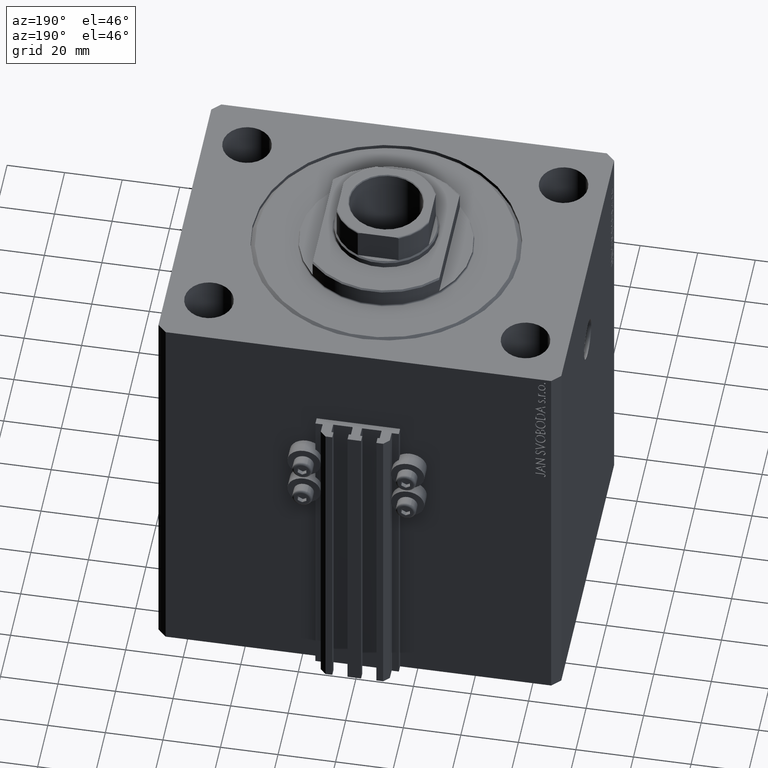
[diagram: clean part render]
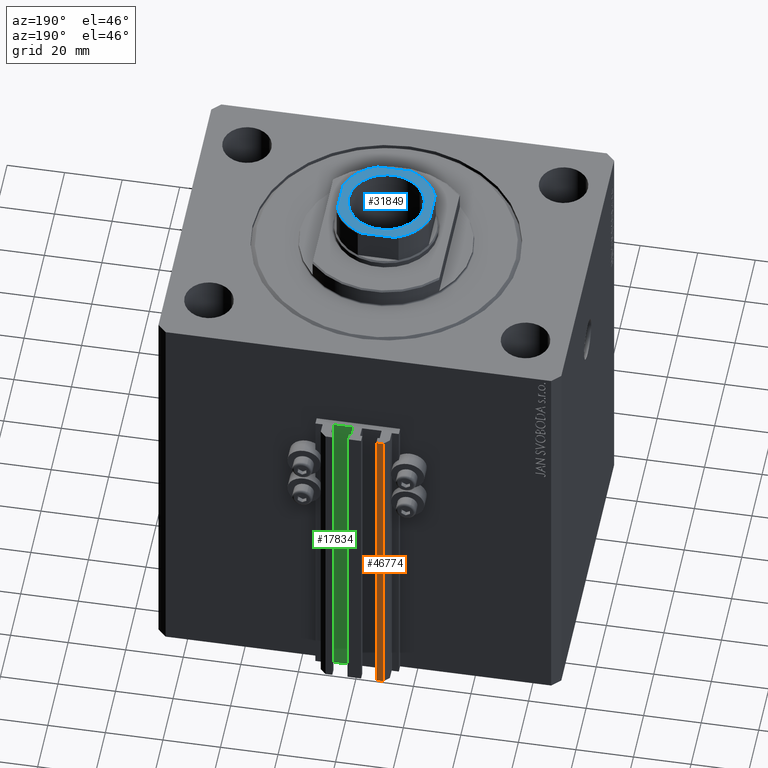
[diagram: same view with three faces highlighted in distinct colors, each labeled with its STEP entity id]
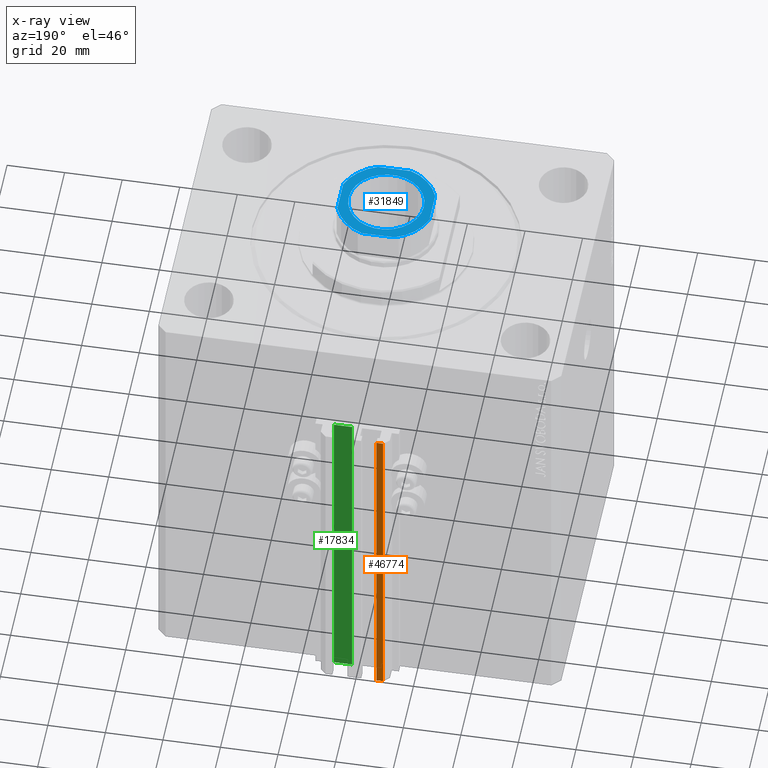
[diagram: x-ray of the same camera — body ghosted, the three highlighted faces saturated]
A machine part, auxiliary view with three faces highlighted in distinct colors.
The next image is the same camera in x-ray (body ghosted, the three faces saturated) — at least one of them is partly hidden behind the body in this view.
Their STEP definitions:

[orange] entity #46774 — the highlighted planar face has unit normal (0, 1, 0).
#1462 = AXIS2_PLACEMENT_3D ( 'NONE', #41433, #30651, #18926 ) ;
#2380 = ORIENTED_EDGE ( 'NONE', *, *, #29021, .F. ) ;
#4553 = VECTOR ( 'NONE', #31254, 1000.000000000000000 ) ;
#4908 = DIRECTION ( 'NONE',  ( -1.000000000000000000, 0.000000000000000000, 0.000000000000000000 ) ) ;
#5214 = CARTESIAN_POINT ( 'NONE',  ( -10.00000000000000000, 63.00000000000000000, -150.0000000000000000 ) ) ;
#6713 = CARTESIAN_POINT ( 'NONE',  ( -10.00000000000000000, 63.00000000000000000, -150.0000000000000000 ) ) ;
#7490 = EDGE_CURVE ( 'NONE', #29170, #40756, #45861, .T. ) ;
#7677 = PLANE ( 'NONE',  #1462 ) ;
#8087 = EDGE_LOOP ( 'NONE', ( #2380, #33538, #15801, #20609 ) ) ;
#8763 = LINE ( 'NONE', #27214, #22658 ) ;
#13406 = VECTOR ( 'NONE', #4908, 1000.000000000000000 ) ;
#15245 = VERTEX_POINT ( 'NONE', #16128 ) ;
#15801 = ORIENTED_EDGE ( 'NONE', *, *, #27554, .T. ) ;
#16128 = CARTESIAN_POINT ( 'NONE',  ( -10.00000000000000000, 63.00000000000000000, -33.00000000000000000 ) ) ;
#16648 = CARTESIAN_POINT ( 'NONE',  ( -7.650000000000002132, 63.00000000000000000, -150.0000000000000000 ) ) ;
#17684 = EDGE_CURVE ( 'NONE', #38167, #15245, #46131, .T. ) ;
#18926 = DIRECTION ( 'NONE',  ( 0.000000000000000000, 0.000000000000000000, 1.000000000000000000 ) ) ;
#20254 = DIRECTION ( 'NONE',  ( -1.000000000000000000, 0.000000000000000000, 0.000000000000000000 ) ) ;
#20609 = ORIENTED_EDGE ( 'NONE', *, *, #17684, .T. ) ;
#22520 = FACE_OUTER_BOUND ( 'NONE', #8087, .T. ) ;
#22658 = VECTOR ( 'NONE', #20254, 1000.000000000000000 ) ;
#24340 = DIRECTION ( 'NONE',  ( 0.000000000000000000, 0.000000000000000000, 1.000000000000000000 ) ) ;
#26697 = LINE ( 'NONE', #37697, #13406 ) ;
#27214 = CARTESIAN_POINT ( 'NONE',  ( -7.650000000000002132, 63.00000000000000000, -33.00000000000000000 ) ) ;
#27554 = EDGE_CURVE ( 'NONE', #29170, #38167, #26697, .T. ) ;
#29021 = EDGE_CURVE ( 'NONE', #40756, #15245, #8763, .T. ) ;
#29170 = VERTEX_POINT ( 'NONE', #29782 ) ;
#29782 = CARTESIAN_POINT ( 'NONE',  ( -7.650000000000002132, 63.00000000000000000, -150.0000000000000000 ) ) ;
#30651 = DIRECTION ( 'NONE',  ( 0.000000000000000000, 1.000000000000000000, -0.000000000000000000 ) ) ;
#31254 = DIRECTION ( 'NONE',  ( 0.000000000000000000, 0.000000000000000000, 1.000000000000000000 ) ) ;
#33538 = ORIENTED_EDGE ( 'NONE', *, *, #7490, .F. ) ;
#33660 = CARTESIAN_POINT ( 'NONE',  ( -7.650000000000002132, 63.00000000000000000, -33.00000000000000000 ) ) ;
#37697 = CARTESIAN_POINT ( 'NONE',  ( -7.650000000000002132, 63.00000000000000000, -150.0000000000000000 ) ) ;
#38167 = VERTEX_POINT ( 'NONE', #6713 ) ;
#40756 = VERTEX_POINT ( 'NONE', #33660 ) ;
#41433 = CARTESIAN_POINT ( 'NONE',  ( -7.650000000000002132, 63.00000000000000000, -150.0000000000000000 ) ) ;
#45280 = VECTOR ( 'NONE', #24340, 1000.000000000000000 ) ;
#45861 = LINE ( 'NONE', #16648, #4553 ) ;
#46131 = LINE ( 'NONE', #5214, #45280 ) ;
#46774 = ADVANCED_FACE ( 'NONE', ( #22520 ), #7677, .T. ) ;

[blue] entity #31849 — the highlighted planar face has unit normal (0, 0, 1).
#118 = DIRECTION ( 'NONE',  ( -0.000000000000000000, 0.000000000000000000, 1.000000000000000000 ) ) ;
#405 = CARTESIAN_POINT ( 'NONE',  ( -16.00000000000000000, 15.99999999999999645, 145.0000000000000284 ) ) ;
#2762 = DIRECTION ( 'NONE',  ( 1.000000000000000000, 0.000000000000000000, 0.000000000000000000 ) ) ;
#4376 = CARTESIAN_POINT ( 'NONE',  ( -16.00000000000000000, -5.744562646538033945, 145.0000000000000284 ) ) ;
#4602 = VERTEX_POINT ( 'NONE', #4376 ) ;
#4619 = DIRECTION ( 'NONE',  ( -0.000000000000000000, 0.000000000000000000, 1.000000000000000000 ) ) ;
#4863 = ORIENTED_EDGE ( 'NONE', *, *, #19748, .T. ) ;
#4965 = ORIENTED_EDGE ( 'NONE', *, *, #16201, .T. ) ;
#5710 = CARTESIAN_POINT ( 'NONE',  ( -5.744562646538029504, -16.00000000000000355, 145.0000000000000284 ) ) ;
#6556 = DIRECTION ( 'NONE',  ( 1.000000000000000000, 0.000000000000000000, 0.000000000000000000 ) ) ;
#6683 = ORIENTED_EDGE ( 'NONE', *, *, #25469, .T. ) ;
#7034 = DIRECTION ( 'NONE',  ( 1.000000000000000000, 0.000000000000000000, 0.000000000000000000 ) ) ;
#7097 = VECTOR ( 'NONE', #44443, 1000.000000000000000 ) ;
#7170 = ORIENTED_EDGE ( 'NONE', *, *, #22624, .T. ) ;
#7906 = EDGE_CURVE ( 'NONE', #46087, #4602, #39945, .T. ) ;
#8880 = LINE ( 'NONE', #41687, #9290 ) ;
#9290 = VECTOR ( 'NONE', #34033, 1000.000000000000000 ) ;
#11210 = AXIS2_PLACEMENT_3D ( 'NONE', #32848, #4619, #33572 ) ;
#11322 = DIRECTION ( 'NONE',  ( -0.000000000000000000, 0.000000000000000000, 1.000000000000000000 ) ) ;
#12276 = EDGE_LOOP ( 'NONE', ( #7170, #33754 ) ) ;
#13628 = CARTESIAN_POINT ( 'NONE',  ( 0.000000000000000000, 0.000000000000000000, 145.0000000000000284 ) ) ;
#15119 = LINE ( 'NONE', #44080, #42400 ) ;
#15223 = CARTESIAN_POINT ( 'NONE',  ( 16.00000000000000355, -5.744562646538033057, 145.0000000000000284 ) ) ;
#15249 = CARTESIAN_POINT ( 'NONE',  ( 0.000000000000000000, 0.000000000000000000, 145.0000000000000284 ) ) ;
#15678 = VERTEX_POINT ( 'NONE', #41798 ) ;
#15765 = EDGE_CURVE ( 'NONE', #22145, #46087, #19204, .T. ) ;
#16197 = EDGE_CURVE ( 'NONE', #4602, #42830, #19238, .T. ) ;
#16201 = EDGE_CURVE ( 'NONE', #42830, #35160, #8880, .T. ) ;
#16364 = CIRCLE ( 'NONE', #23225, 13.05000000000003268 ) ;
#16612 = CIRCLE ( 'NONE', #31888, 13.05000000000003268 ) ;
#16814 = VECTOR ( 'NONE', #28253, 1000.000000000000000 ) ;
#19204 = CIRCLE ( 'NONE', #45957, 17.00000000000000000 ) ;
#19238 = CIRCLE ( 'NONE', #42171, 17.00000000000000000 ) ;
#19490 = CARTESIAN_POINT ( 'NONE',  ( -13.05000000000003268, 1.598164072887299324E-15, 145.0000000000000284 ) ) ;
#19748 = EDGE_CURVE ( 'NONE', #15678, #22145, #40847, .T. ) ;
#22145 = VERTEX_POINT ( 'NONE', #26279 ) ;
#22375 = ORIENTED_EDGE ( 'NONE', *, *, #28636, .T. ) ;
#22381 = CARTESIAN_POINT ( 'NONE',  ( 13.05000000000003268, 0.000000000000000000, 145.0000000000000284 ) ) ;
#22624 = EDGE_CURVE ( 'NONE', #34997, #43314, #16364, .T. ) ;
#23029 = DIRECTION ( 'NONE',  ( 1.000000000000000000, 0.000000000000000000, 0.000000000000000000 ) ) ;
#23225 = AXIS2_PLACEMENT_3D ( 'NONE', #24509, #27879, #6556 ) ;
#23734 = DIRECTION ( 'NONE',  ( -0.000000000000000000, 0.000000000000000000, 1.000000000000000000 ) ) ;
#23965 = CARTESIAN_POINT ( 'NONE',  ( 0.000000000000000000, 0.000000000000000000, 145.0000000000000284 ) ) ;
#24509 = CARTESIAN_POINT ( 'NONE',  ( 0.000000000000000000, 0.000000000000000000, 145.0000000000000284 ) ) ;
#25000 = CARTESIAN_POINT ( 'NONE',  ( 0.000000000000000000, 0.000000000000000000, 145.0000000000000284 ) ) ;
#25469 = EDGE_CURVE ( 'NONE', #35160, #31548, #34802, .T. ) ;
#25683 = FACE_OUTER_BOUND ( 'NONE', #45837, .T. ) ;
#25931 = PLANE ( 'NONE',  #35627 ) ;
#26279 = CARTESIAN_POINT ( 'NONE',  ( -5.744562646538033945, 16.00000000000000000, 145.0000000000000284 ) ) ;
#27773 = DIRECTION ( 'NONE',  ( 0.000000000000000000, -0.000000000000000000, -1.000000000000000000 ) ) ;
#27879 = DIRECTION ( 'NONE',  ( 0.000000000000000000, -0.000000000000000000, -1.000000000000000000 ) ) ;
#28239 = DIRECTION ( 'NONE',  ( 1.000000000000000000, 0.000000000000000000, 0.000000000000000000 ) ) ;
#28253 = DIRECTION ( 'NONE',  ( 1.084202172485504434E-16, -1.000000000000000000, 0.000000000000000000 ) ) ;
#28636 = EDGE_CURVE ( 'NONE', #31548, #41488, #15119, .T. ) ;
#28708 = CARTESIAN_POINT ( 'NONE',  ( -16.00000000000000000, 15.99999999999999645, 145.0000000000000284 ) ) ;
#29146 = ORIENTED_EDGE ( 'NONE', *, *, #16197, .T. ) ;
#31548 = VERTEX_POINT ( 'NONE', #15223 ) ;
#31849 = ADVANCED_FACE ( 'NONE', ( #36443, #25683 ), #25931, .T. ) ;
#31855 = CIRCLE ( 'NONE', #11210, 17.00000000000000000 ) ;
#31888 = AXIS2_PLACEMENT_3D ( 'NONE', #13628, #27773, #28239 ) ;
#32166 = CARTESIAN_POINT ( 'NONE',  ( 16.00000000000000000, 5.744562646538033945, 145.0000000000000284 ) ) ;
#32848 = CARTESIAN_POINT ( 'NONE',  ( 0.000000000000000000, 0.000000000000000000, 145.0000000000000284 ) ) ;
#33431 = DIRECTION ( 'NONE',  ( -0.000000000000000000, 0.000000000000000000, 1.000000000000000000 ) ) ;
#33572 = DIRECTION ( 'NONE',  ( 1.000000000000000000, 0.000000000000000000, 0.000000000000000000 ) ) ;
#33754 = ORIENTED_EDGE ( 'NONE', *, *, #41965, .T. ) ;
#34033 = DIRECTION ( 'NONE',  ( 1.000000000000000000, 1.084202172485504434E-16, 0.000000000000000000 ) ) ;
#34206 = ORIENTED_EDGE ( 'NONE', *, *, #7906, .T. ) ;
#34802 = CIRCLE ( 'NONE', #41680, 17.00000000000000000 ) ;
#34997 = VERTEX_POINT ( 'NONE', #22381 ) ;
#35160 = VERTEX_POINT ( 'NONE', #43166 ) ;
#35318 = EDGE_CURVE ( 'NONE', #41488, #15678, #31855, .T. ) ;
#35627 = AXIS2_PLACEMENT_3D ( 'NONE', #44123, #11322, #7034 ) ;
#36443 = FACE_BOUND ( 'NONE', #12276, .T. ) ;
#36649 = DIRECTION ( 'NONE',  ( -1.084202172485504434E-16, 1.000000000000000000, -0.000000000000000000 ) ) ;
#38366 = ORIENTED_EDGE ( 'NONE', *, *, #35318, .T. ) ;
#39865 = CARTESIAN_POINT ( 'NONE',  ( -16.00000000000000000, 5.744562646538029504, 145.0000000000000284 ) ) ;
#39945 = LINE ( 'NONE', #28708, #16814 ) ;
#40847 = LINE ( 'NONE', #405, #7097 ) ;
#40855 = DIRECTION ( 'NONE',  ( 1.000000000000000000, 0.000000000000000000, 0.000000000000000000 ) ) ;
#41488 = VERTEX_POINT ( 'NONE', #32166 ) ;
#41680 = AXIS2_PLACEMENT_3D ( 'NONE', #15249, #33431, #40855 ) ;
#41687 = CARTESIAN_POINT ( 'NONE',  ( -15.99999999999999645, -16.00000000000000355, 145.0000000000000284 ) ) ;
#41798 = CARTESIAN_POINT ( 'NONE',  ( 5.744562646538033057, 16.00000000000000000, 145.0000000000000284 ) ) ;
#41965 = EDGE_CURVE ( 'NONE', #43314, #34997, #16612, .T. ) ;
#42171 = AXIS2_PLACEMENT_3D ( 'NONE', #23965, #23734, #23029 ) ;
#42400 = VECTOR ( 'NONE', #36649, 1000.000000000000000 ) ;
#42830 = VERTEX_POINT ( 'NONE', #5710 ) ;
#43166 = CARTESIAN_POINT ( 'NONE',  ( 5.744562646538024175, -16.00000000000000355, 145.0000000000000284 ) ) ;
#43314 = VERTEX_POINT ( 'NONE', #19490 ) ;
#44080 = CARTESIAN_POINT ( 'NONE',  ( 16.00000000000000000, 16.00000000000000000, 145.0000000000000284 ) ) ;
#44123 = CARTESIAN_POINT ( 'NONE',  ( 0.000000000000000000, 0.000000000000000000, 145.0000000000000284 ) ) ;
#44443 = DIRECTION ( 'NONE',  ( -1.000000000000000000, -1.084202172485504434E-16, -0.000000000000000000 ) ) ;
#44470 = ORIENTED_EDGE ( 'NONE', *, *, #15765, .T. ) ;
#45837 = EDGE_LOOP ( 'NONE', ( #34206, #29146, #4965, #6683, #22375, #38366, #4863, #44470 ) ) ;
#45957 = AXIS2_PLACEMENT_3D ( 'NONE', #25000, #118, #2762 ) ;
#46087 = VERTEX_POINT ( 'NONE', #39865 ) ;

[green] entity #17834 — the highlighted planar face has unit normal (0, 1, 0).
#978 = VERTEX_POINT ( 'NONE', #31252 ) ;
#2578 = CARTESIAN_POINT ( 'NONE',  ( 8.199999999999999289, 57.00000000000000711, -33.00000000000000000 ) ) ;
#2809 = LINE ( 'NONE', #2578, #26736 ) ;
#4548 = DIRECTION ( 'NONE',  ( 0.000000000000000000, 0.000000000000000000, 1.000000000000000000 ) ) ;
#5541 = AXIS2_PLACEMENT_3D ( 'NONE', #25265, #13791, #32220 ) ;
#6440 = VECTOR ( 'NONE', #39098, 1000.000000000000000 ) ;
#7222 = EDGE_CURVE ( 'NONE', #978, #27483, #2809, .T. ) ;
#9597 = CARTESIAN_POINT ( 'NONE',  ( 8.199999999999999289, 57.00000000000000000, -150.0000000000000000 ) ) ;
#10303 = ORIENTED_EDGE ( 'NONE', *, *, #29793, .F. ) ;
#13791 = DIRECTION ( 'NONE',  ( 0.000000000000000000, 1.000000000000000000, -0.000000000000000000 ) ) ;
#14492 = FACE_OUTER_BOUND ( 'NONE', #22315, .T. ) ;
#17389 = PLANE ( 'NONE',  #5541 ) ;
#17612 = CARTESIAN_POINT ( 'NONE',  ( 1.800000000000000933, 57.00000000000000711, -33.00000000000000000 ) ) ;
#17834 = ADVANCED_FACE ( 'NONE', ( #14492 ), #17389, .T. ) ;
#18912 = DIRECTION ( 'NONE',  ( -1.000000000000000000, 0.000000000000000000, 0.000000000000000000 ) ) ;
#21464 = DIRECTION ( 'NONE',  ( -1.000000000000000000, 0.000000000000000000, 0.000000000000000000 ) ) ;
#21542 = VERTEX_POINT ( 'NONE', #9597 ) ;
#22253 = CARTESIAN_POINT ( 'NONE',  ( 8.199999999999999289, 57.00000000000000000, -150.0000000000000000 ) ) ;
#22315 = EDGE_LOOP ( 'NONE', ( #34528, #10303, #44374, #22457 ) ) ;
#22457 = ORIENTED_EDGE ( 'NONE', *, *, #26790, .T. ) ;
#25265 = CARTESIAN_POINT ( 'NONE',  ( 8.199999999999999289, 57.00000000000000711, -150.0000000000000000 ) ) ;
#25372 = LINE ( 'NONE', #40202, #36515 ) ;
#26736 = VECTOR ( 'NONE', #21464, 1000.000000000000000 ) ;
#26790 = EDGE_CURVE ( 'NONE', #37292, #27483, #39320, .T. ) ;
#27483 = VERTEX_POINT ( 'NONE', #17612 ) ;
#29793 = EDGE_CURVE ( 'NONE', #21542, #978, #37334, .T. ) ;
#31252 = CARTESIAN_POINT ( 'NONE',  ( 8.199999999999999289, 57.00000000000000000, -33.00000000000000000 ) ) ;
#32220 = DIRECTION ( 'NONE',  ( 0.000000000000000000, 0.000000000000000000, 1.000000000000000000 ) ) ;
#34528 = ORIENTED_EDGE ( 'NONE', *, *, #7222, .F. ) ;
#36515 = VECTOR ( 'NONE', #18912, 1000.000000000000000 ) ;
#37292 = VERTEX_POINT ( 'NONE', #40967 ) ;
#37334 = LINE ( 'NONE', #22253, #44037 ) ;
#39098 = DIRECTION ( 'NONE',  ( 0.000000000000000000, 0.000000000000000000, 1.000000000000000000 ) ) ;
#39320 = LINE ( 'NONE', #47218, #6440 ) ;
#40202 = CARTESIAN_POINT ( 'NONE',  ( 8.199999999999999289, 57.00000000000000711, -150.0000000000000000 ) ) ;
#40967 = CARTESIAN_POINT ( 'NONE',  ( 1.800000000000000933, 57.00000000000000711, -150.0000000000000000 ) ) ;
#44037 = VECTOR ( 'NONE', #4548, 1000.000000000000000 ) ;
#44374 = ORIENTED_EDGE ( 'NONE', *, *, #44549, .T. ) ;
#44549 = EDGE_CURVE ( 'NONE', #21542, #37292, #25372, .T. ) ;
#47218 = CARTESIAN_POINT ( 'NONE',  ( 1.800000000000000933, 57.00000000000000711, -150.0000000000000000 ) ) ;